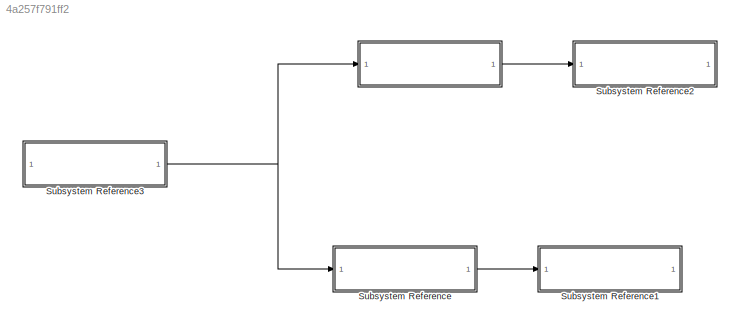
MODEL slx_4a257f791ff2
KIND model
CONFIG AbsTol = auto
CONFIG EnableMultiTasking = on
CONFIG FixedStep = auto
CONFIG MaxStep = auto
CONFIG MinStep = auto
CONFIG RelTol = 1e-3
CONFIG SampleTimeConstraint = Unconstrained
CONFIG SolverName = FixedStepAuto
CONFIG StartTime = 0.0
CONFIG StopTime = 10
BLOCK [SubSystem]  
  ReferencedSubsystem = evitaparedes
BLOCK [SubSystem] Subsystem Reference
  ReferencedSubsystem = luces
BLOCK [SubSystem] Subsystem Reference1
  ReferencedSubsystem = leds
BLOCK [SubSystem] Subsystem Reference2
  ReferencedSubsystem = motores
BLOCK [SubSystem] Subsystem Reference3
  ReferencedSubsystem = sensores
LINE  :1 -> Subsystem Reference2:1
NET Subsystem Reference3:1 ->  :1, Subsystem Reference:1
LINE Subsystem Reference:1 -> Subsystem Reference1:1
note: NET lines group one-source signal fan-out (src -> all destinations, sorted); 1:1 wires keep LINE
